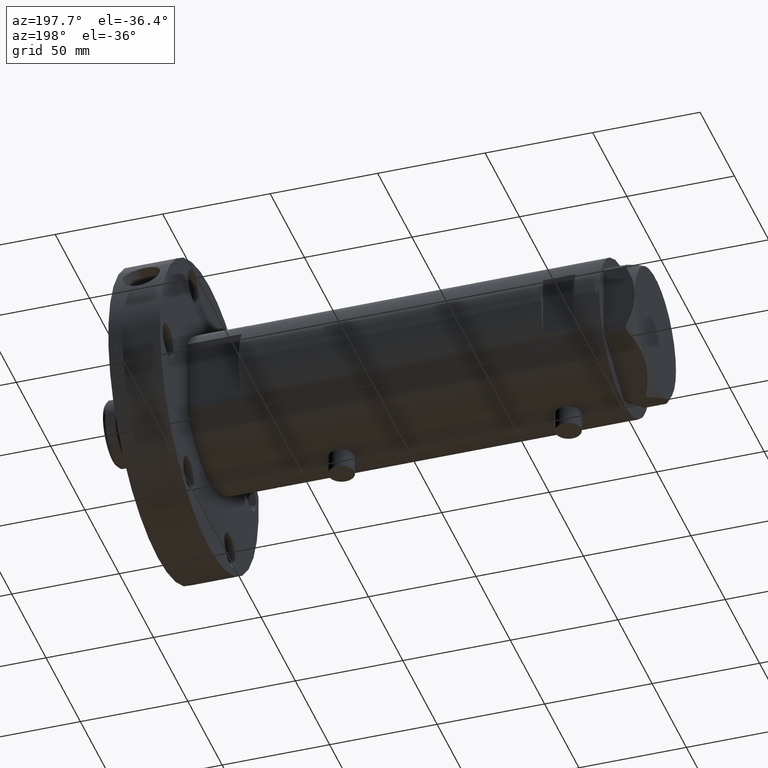
[diagram: clean part render]
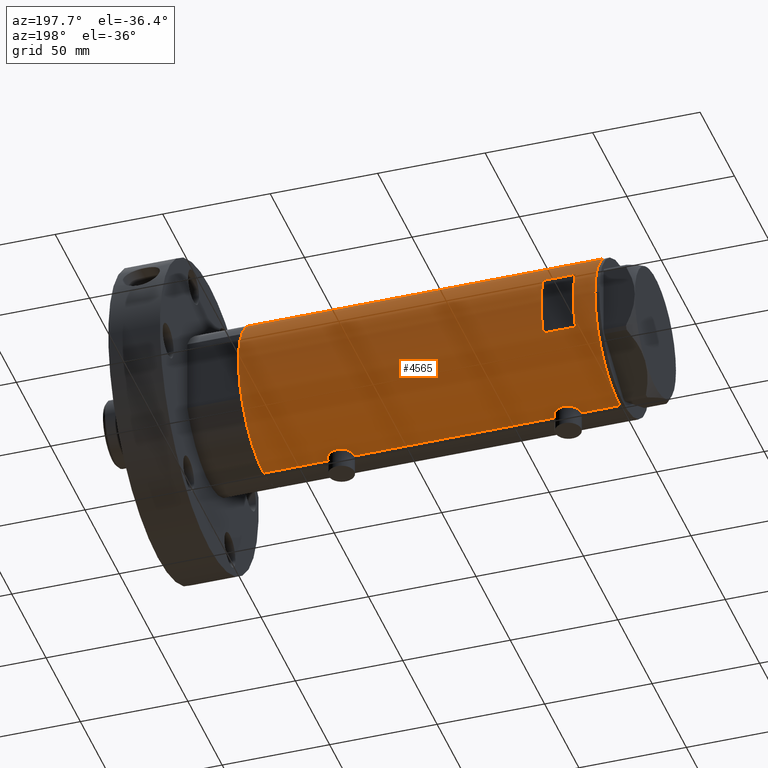
[diagram: same view with one face highlighted and labeled with its STEP entity id]
A machine part, auxiliary view. The second image highlights one B-rep face of the part: STEP entity #4565.
In plain terms, the highlighted cylindrical surface (partial cylindrical patch) has radius 36.5 mm, axis along (-1, -0, 0).
Its self-contained STEP definition (entity closure, byte-faithful):
#3 = CARTESIAN_POINT ( 'NONE',  ( 36.13018480315371761, 5.199168368309162958, 49.34353501791949981 ) ) ;
#9 = CARTESIAN_POINT ( 'NONE',  ( -36.46462099658055678, 1.618684470865503489, 64.94024397024845996 ) ) ;
#34 = CARTESIAN_POINT ( 'NONE',  ( 36.29611582693038940, 3.878758190381168092, -28.86955010900449992 ) ) ;
#36 = CARTESIAN_POINT ( 'NONE',  ( 35.69321149401850590, 7.633476302278302761, 64.36463072166442601 ) ) ;
#41 = CARTESIAN_POINT ( 'NONE',  ( -36.50000000000001421, 0.4083036190459299886, 52.65000000000002700 ) ) ;
#50 = CARTESIAN_POINT ( 'NONE',  ( 36.50000000000000000, 0.000000000000000000, -48.10000000000000142 ) ) ;
#60 = CARTESIAN_POINT ( 'NONE',  ( 36.50000000000000000, 0.4961820988516186803, -28.10000000000000142 ) ) ;
#85 = CARTESIAN_POINT ( 'NONE',  ( -36.19624103943463211, 4.708090268046854376, -42.46938778553861482 ) ) ;
#152 = CARTESIAN_POINT ( 'NONE',  ( 0.000000000000000000, 0.000000000000000000, 82.90000000000000568 ) ) ;
#181 = VECTOR ( 'NONE', #5698, 1000.000000000000000 ) ;
#246 = CARTESIAN_POINT ( 'NONE',  ( 0.000000000000000000, 0.000000000000000000, 57.90000000000014779 ) ) ;
#257 = CARTESIAN_POINT ( 'NONE',  ( 35.29999999999999716, 9.282241108697837362, -82.90000000000000568 ) ) ;
#262 = DIRECTION ( 'NONE',  ( 0.000000000000000000, 0.000000000000000000, 1.000000000000000000 ) ) ;
#285 = EDGE_CURVE ( 'NONE', #4495, #5595, #3672, .T. ) ;
#307 = CARTESIAN_POINT ( 'NONE',  ( 36.00287854058830561, 6.017835360303004144, -46.10188117181726142 ) ) ;
#326 = DIRECTION ( 'NONE',  ( -0.000000000000000000, -0.000000000000000000, -1.000000000000000000 ) ) ;
#337 = EDGE_CURVE ( 'NONE', #1635, #692, #5939, .T. ) ;
#342 = CARTESIAN_POINT ( 'NONE',  ( -36.50000000000000000, 4.469960816887838430E-15, -82.90000000000000568 ) ) ;
#344 = ORIENTED_EDGE ( 'NONE', *, *, #3118, .F. ) ;
#375 = CARTESIAN_POINT ( 'NONE',  ( -35.96805604460922012, 6.209309709790225007, 58.07887241731829420 ) ) ;
#378 = VERTEX_POINT ( 'NONE', #1829 ) ;
#397 = CARTESIAN_POINT ( 'NONE',  ( 36.50000000000000000, 4.344611676915099379E-19, -28.10000000000000142 ) ) ;
#399 = CARTESIAN_POINT ( 'NONE',  ( 36.29611582693039651, 3.878758190381167648, 67.13044989099549298 ) ) ;
#408 = CARTESIAN_POINT ( 'NONE',  ( -36.09617453667821962, 5.415318599347956230, 62.02706642672912807 ) ) ;
#426 = CARTESIAN_POINT ( 'NONE',  ( -36.01679413914727235, 5.919813138266332153, -44.58500308952962143 ) ) ;
#463 = CARTESIAN_POINT ( 'NONE',  ( 36.50000000000000000, 0.000000000000000000, 47.89999999999999858 ) ) ;
#481 = EDGE_CURVE ( 'NONE', #4024, #3593, #3124, .T. ) ;
#484 = CARTESIAN_POINT ( 'NONE',  ( -36.06690560274405044, 5.606949625760679901, -49.36885923958933375 ) ) ;
#491 = DIRECTION ( 'NONE',  ( 1.000000000000000000, 0.000000000000000000, 0.000000000000000000 ) ) ;
#493 = CARTESIAN_POINT ( 'NONE',  ( 36.45853166336078743, 1.985123042546143690, 48.04837329582261418 ) ) ;
#500 = CARTESIAN_POINT ( 'NONE',  ( -36.49292802938586533, 0.8230716655928878023, 52.69093061246486798 ) ) ;
#519 = CARTESIAN_POINT ( 'NONE',  ( -36.50000000000000711, 0.4083036190459276016, -52.85000000000001563 ) ) ;
#544 = ORIENTED_EDGE ( 'NONE', *, *, #1951, .T. ) ;
#545 = CARTESIAN_POINT ( 'NONE',  ( -36.26695135241004664, 4.128455078791307464, -51.31037591644739848 ) ) ;
#582 = CARTESIAN_POINT ( 'NONE',  ( 36.18937351723702989, 4.773052864917642246, -29.29864006881156513 ) ) ;
#616 = CARTESIAN_POINT ( 'NONE',  ( 36.41717583764485511, 2.469534783404757405, -28.40651988824328456 ) ) ;
#638 = DIRECTION ( 'NONE',  ( 1.000000000000000000, 1.776356839400250465E-15, 0.000000000000000000 ) ) ;
#681 = LINE ( 'NONE', #4324, #2271 ) ;
#686 = ORIENTED_EDGE ( 'NONE', *, *, #337, .T. ) ;
#692 = VERTEX_POINT ( 'NONE', #817 ) ;
#736 = ORIENTED_EDGE ( 'NONE', *, *, #5555, .F. ) ;
#817 = CARTESIAN_POINT ( 'NONE',  ( -36.50000000000000000, 4.469960816887838430E-15, 82.90000000000000568 ) ) ;
#837 = CARTESIAN_POINT ( 'NONE',  ( -36.44504802628534890, 2.011764947064734077, 64.82093644908518115 ) ) ;
#838 = LINE ( 'NONE', #342, #1398 ) ;
#862 = CARTESIAN_POINT ( 'NONE',  ( 36.00287854058830561, 6.017835360303004144, 49.89811882818275990 ) ) ;
#867 = CARTESIAN_POINT ( 'NONE',  ( -36.50000000000000000, 0.4137727629436733778, 65.15000000000000568 ) ) ;
#894 = CARTESIAN_POINT ( 'NONE',  ( 36.45954139109321801, 1.735915671103596125, 67.75136781147011789 ) ) ;
#916 = CARTESIAN_POINT ( 'NONE',  ( -36.46598788992681506, 1.625721481788706013, -52.64872046713838216 ) ) ;
#918 = VERTEX_POINT ( 'NONE', #50 ) ;
#923 = CARTESIAN_POINT ( 'NONE',  ( 35.29999999999999716, 9.282241108697837362, -41.82021504754764862 ) ) ;
#926 = CARTESIAN_POINT ( 'NONE',  ( -36.44628644024910358, 2.015372769639941275, 52.96971871986416858 ) ) ;
#939 = ORIENTED_EDGE ( 'NONE', *, *, #5234, .F. ) ;
#941 = CARTESIAN_POINT ( 'NONE',  ( -36.09617453667819831, 5.415318599347969553, -43.47293357327087193 ) ) ;
#944 = CARTESIAN_POINT ( 'NONE',  ( -36.50000000000000000, 4.469960493366092827E-15, -52.85000000000000853 ) ) ;
#948 = CARTESIAN_POINT ( 'NONE',  ( 35.52347503888662317, 8.410566959990465108, 63.39953967259342704 ) ) ;
#953 = CARTESIAN_POINT ( 'NONE',  ( -36.06690560274405044, 5.606949625760669242, 56.13114076041065914 ) ) ;
#971 = CARTESIAN_POINT ( 'NONE',  ( -35.99700617875954123, 6.038972911021593504, -44.97666814201680552 ) ) ;
#977 = CARTESIAN_POINT ( 'NONE',  ( 35.39804469700248291, 8.909380959553011792, -33.44946835517156103 ) ) ;
#1007 = CARTESIAN_POINT ( 'NONE',  ( -36.09643313249890895, 5.413601294342283765, -49.73007773391854869 ) ) ;
#1043 = DIRECTION ( 'NONE',  ( 1.000000000000000000, 0.000000000000000000, 0.000000000000000000 ) ) ;
#1155 = DIRECTION ( 'NONE',  ( -0.000000000000000000, -0.000000000000000000, -1.000000000000000000 ) ) ;
#1189 = CARTESIAN_POINT ( 'NONE',  ( 0.000000000000000000, 0.000000000000000000, 72.89999999999999147 ) ) ;
#1205 = VERTEX_POINT ( 'NONE', #2709 ) ;
#1206 = CARTESIAN_POINT ( 'NONE',  ( 36.34070350304396868, 3.414301401755547083, -47.50236217375907444 ) ) ;
#1287 = AXIS2_PLACEMENT_3D ( 'NONE', #246, #2137, #3144 ) ;
#1296 = ORIENTED_EDGE ( 'NONE', *, *, #5691, .F. ) ;
#1323 = CARTESIAN_POINT ( 'NONE',  ( 36.50000000000000000, 0.000000000000000000, -82.90000000000000568 ) ) ;
#1344 = CARTESIAN_POINT ( 'NONE',  ( -36.26695135241003953, 4.128455078791303023, 54.18962408355263705 ) ) ;
#1360 = CARTESIAN_POINT ( 'NONE',  ( -36.50000000000000000, 0.4137727629436737109, -40.35000000000000142 ) ) ;
#1369 = CARTESIAN_POINT ( 'NONE',  ( 36.41717583764487642, 2.469534783404759182, 67.59348011175673321 ) ) ;
#1375 = CARTESIAN_POINT ( 'NONE',  ( -14.49137674618942739, 33.50000000000000000, -82.90000000000000568 ) ) ;
#1394 = CARTESIAN_POINT ( 'NONE',  ( -36.39522946636255085, 2.769519034821246617, -52.20663923731272860 ) ) ;
#1398 = VECTOR ( 'NONE', #1685, 1000.000000000000000 ) ;
#1403 = CARTESIAN_POINT ( 'NONE',  ( 35.52737867031126484, 8.373910777960910323, -43.58860356717065798 ) ) ;
#1411 = CARTESIAN_POINT ( 'NONE',  ( -36.01524716445113228, 5.931039972055507370, 56.88669268135342350 ) ) ;
#1412 = EDGE_LOOP ( 'NONE', ( #3854, #3952, #3985, #5430, #3546, #686, #1296, #5461, #2348, #544, #736, #5694, #3105, #4111, #2440, #4710 ) ) ;
#1431 = FACE_BOUND ( 'NONE', #5076, .T. ) ;
#1436 = CARTESIAN_POINT ( 'NONE',  ( -36.36688032967139605, 3.133094607697478828, 64.32336432637509915 ) ) ;
#1451 = CARTESIAN_POINT ( 'NONE',  ( -36.30200038006934449, 3.811959488093747961, -41.63027895163993009 ) ) ;
#1459 = CARTESIAN_POINT ( 'NONE',  ( 36.18937351723702989, 4.773052864917642246, 66.70135993118843487 ) ) ;
#1464 = CARTESIAN_POINT ( 'NONE',  ( -35.96094343308265451, 6.249843792257625097, 59.31087110344572011 ) ) ;
#1478 = CARTESIAN_POINT ( 'NONE',  ( 36.50000000000000000, 0.000000000000000000, 82.90000000000000568 ) ) ;
#1480 = CARTESIAN_POINT ( 'NONE',  ( -36.39638105034455151, 2.774378062517180332, -40.98456667300897749 ) ) ;
#1523 = CARTESIAN_POINT ( 'NONE',  ( 35.79715675463676661, 7.130463293899343746, -31.08444415894004109 ) ) ;
#1575 = CARTESIAN_POINT ( 'NONE',  ( -36.50000000000000000, 4.469960493366092827E-15, -52.85000000000000853 ) ) ;
#1579 = CARTESIAN_POINT ( 'NONE',  ( 35.72794581931695035, 7.469526493268208611, -31.44660203271737586 ) ) ;
#1635 = VERTEX_POINT ( 'NONE', #1713 ) ;
#1685 = DIRECTION ( 'NONE',  ( 0.000000000000000000, 0.000000000000000000, 1.000000000000000000 ) ) ;
#1713 = CARTESIAN_POINT ( 'NONE',  ( -36.50000000000000000, 2.196845629780489385E-16, 65.15000000000000568 ) ) ;
#1740 = CARTESIAN_POINT ( 'NONE',  ( 35.59366931936805400, 8.089554397885871495, -43.99927319087814936 ) ) ;
#1743 = CARTESIAN_POINT ( 'NONE',  ( 36.50000000000000000, 0.000000000000000000, -82.90000000000000568 ) ) ;
#1758 = EDGE_CURVE ( 'NONE', #4124, #4705, #3263, .T. ) ;
#1804 = AXIS2_PLACEMENT_3D ( 'NONE', #3708, #2793, #491 ) ;
#1807 = FACE_OUTER_BOUND ( 'NONE', #1412, .T. ) ;
#1810 = CARTESIAN_POINT ( 'NONE',  ( 35.40502660484482789, 8.876998817796915020, -42.73098724071236632 ) ) ;
#1816 = CARTESIAN_POINT ( 'NONE',  ( -36.11199073531170001, 5.309184630646985426, 62.20412840766834250 ) ) ;
#1821 = CARTESIAN_POINT ( 'NONE',  ( 0.000000000000000000, 0.000000000000000000, -82.90000000000000568 ) ) ;
#1829 = CARTESIAN_POINT ( 'NONE',  ( 35.29999999999999716, 9.282241108697837362, 61.62021504754764578 ) ) ;
#1836 = CARTESIAN_POINT ( 'NONE',  ( 35.93435287561198521, 6.411571491280764867, 65.58988644922843037 ) ) ;
#1840 = CARTESIAN_POINT ( 'NONE',  ( -36.05296344941216091, 5.695624845616822363, 56.31845143463244341 ) ) ;
#1855 = CARTESIAN_POINT ( 'NONE',  ( -36.05296344941215381, 5.695624845616832133, -49.18154856536755659 ) ) ;
#1864 = CARTESIAN_POINT ( 'NONE',  ( 36.36225053217121683, 3.177096004138048713, 48.41483975524019456 ) ) ;
#1869 = CARTESIAN_POINT ( 'NONE',  ( -36.39522946636254375, 2.769519034821240844, 53.29336076268729272 ) ) ;
#1889 = CARTESIAN_POINT ( 'NONE',  ( -36.36688032967139605, 3.133094607697487266, -41.17663567362491506 ) ) ;
#1903 = CARTESIAN_POINT ( 'NONE',  ( -36.49297130294515057, 0.8204796224394267368, 65.10931692217734224 ) ) ;
#1919 = CARTESIAN_POINT ( 'NONE',  ( -36.36587679577596077, 3.131448301962866054, -52.01282465573622460 ) ) ;
#1925 = CARTESIAN_POINT ( 'NONE',  ( 35.72794581931695745, 7.469526493268204170, 64.55339796728263480 ) ) ;
#1945 = CARTESIAN_POINT ( 'NONE',  ( -36.26643311080166399, 4.132772529026643049, -41.89380594730118190 ) ) ;
#1951 = EDGE_CURVE ( 'NONE', #378, #5508, #2278, .T. ) ;
#2014 = CARTESIAN_POINT ( 'NONE',  ( 35.69321149401852011, 7.633476302278306314, -31.63536927833558110 ) ) ;
#2018 = VERTEX_POINT ( 'NONE', #1323 ) ;
#2041 = DIRECTION ( 'NONE',  ( 0.000000000000000000, 0.000000000000000000, 1.000000000000000000 ) ) ;
#2058 = CARTESIAN_POINT ( 'NONE',  ( -14.49137674618942917, 33.50000000000000000, 57.89999999999999147 ) ) ;
#2103 = CARTESIAN_POINT ( 'NONE',  ( -36.50000000000000000, 4.469960493369248271E-15, 52.65000000000001279 ) ) ;
#2129 = VERTEX_POINT ( 'NONE', #1478 ) ;
#2137 = DIRECTION ( 'NONE',  ( 0.000000000000000000, 4.625929269271492422E-15, 1.000000000000000000 ) ) ;
#2138 = EDGE_CURVE ( 'NONE', #1205, #3593, #2815, .T. ) ;
#2198 = CARTESIAN_POINT ( 'NONE',  ( 35.93456089024233790, 6.410413305453381838, -45.79085963204146026 ) ) ;
#2262 = CARTESIAN_POINT ( 'NONE',  ( 36.18948008481302026, 4.772042575486204363, 49.09822368756843503 ) ) ;
#2267 = CARTESIAN_POINT ( 'NONE',  ( -36.30200038006935159, 3.811959488093736415, 63.86972104836005570 ) ) ;
#2271 = VECTOR ( 'NONE', #2454, 1000.000000000000000 ) ;
#2278 = LINE ( 'NONE', #257, #4738 ) ;
#2286 = CARTESIAN_POINT ( 'NONE',  ( 35.29999999999999716, 9.282241108697837362, -82.90000000000000568 ) ) ;
#2296 = CARTESIAN_POINT ( 'NONE',  ( 36.40008489419981430, 2.709263960908035784, 67.52918104596393789 ) ) ;
#2301 = CARTESIAN_POINT ( 'NONE',  ( -14.49137674618942739, 33.50000000000000000, 72.89999999999999147 ) ) ;
#2304 = VERTEX_POINT ( 'NONE', #2058 ) ;
#2318 = CARTESIAN_POINT ( 'NONE',  ( -35.98846897517729815, 6.089479646546508640, -45.17765108453480849 ) ) ;
#2331 = CARTESIAN_POINT ( 'NONE',  ( -36.06675137892952421, 5.607935153446965693, 61.66681826008759515 ) ) ;
#2346 = CARTESIAN_POINT ( 'NONE',  ( -36.49297130294515057, 0.8204796224394304005, -40.39068307782265066 ) ) ;
#2348 = ORIENTED_EDGE ( 'NONE', *, *, #5617, .F. ) ;
#2358 = CARTESIAN_POINT ( 'NONE',  ( 35.72860827204725354, 7.471059959301286746, 51.23474849525592134 ) ) ;
#2363 = CARTESIAN_POINT ( 'NONE',  ( -36.19624103943462501, 4.708090268046841942, 63.03061221446136386 ) ) ;
#2376 = VECTOR ( 'NONE', #5085, 1000.000000000000000 ) ;
#2386 = CIRCLE ( 'NONE', #5846, 36.50000000000000000 ) ;
#2396 = CARTESIAN_POINT ( 'NONE',  ( -36.16126303108062956, 4.966520032693292563, 62.71641227745282521 ) ) ;
#2437 = CARTESIAN_POINT ( 'NONE',  ( -36.35033317675381426, 3.306376218664579536, -51.90770719416052970 ) ) ;
#2440 = ORIENTED_EDGE ( 'NONE', *, *, #5539, .F. ) ;
#2443 = CARTESIAN_POINT ( 'NONE',  ( 36.48988646280794512, 0.9921857666168116818, -28.13671884865573602 ) ) ;
#2454 = DIRECTION ( 'NONE',  ( 0.000000000000000000, 0.000000000000000000, 1.000000000000000000 ) ) ;
#2510 = CARTESIAN_POINT ( 'NONE',  ( 36.45954139109321090, 1.735915671103594571, -28.24863218852990698 ) ) ;
#2641 = VECTOR ( 'NONE', #262, 1000.000000000000000 ) ;
#2662 = CARTESIAN_POINT ( 'NONE',  ( 36.26917563968162739, 4.104523505324179311, -47.22215988367477024 ) ) ;
#2709 = CARTESIAN_POINT ( 'NONE',  ( -36.50000000000000000, 4.469960816887838430E-15, -82.90000000000000568 ) ) ;
#2714 = VERTEX_POINT ( 'NONE', #3940 ) ;
#2729 = CARTESIAN_POINT ( 'NONE',  ( 36.34264078466109993, 3.418717136061407480, 67.31049034040752588 ) ) ;
#2761 = CARTESIAN_POINT ( 'NONE',  ( 35.59366931936805400, 8.089554397885871495, 52.00072680912185774 ) ) ;
#2764 = DIRECTION ( 'NONE',  ( -0.000000000000000000, -0.000000000000000000, -1.000000000000000000 ) ) ;
#2787 = CARTESIAN_POINT ( 'NONE',  ( -36.47290054070997911, 1.420408912806975898, -40.51013018339984484 ) ) ;
#2793 = DIRECTION ( 'NONE',  ( 0.000000000000000000, 0.000000000000000000, 1.000000000000000000 ) ) ;
#2803 = CARTESIAN_POINT ( 'NONE',  ( -36.36587679577596077, 3.131448301962862057, 53.48717534426381803 ) ) ;
#2815 = LINE ( 'NONE', #6126, #181 ) ;
#2824 = CARTESIAN_POINT ( 'NONE',  ( 35.29999999999999716, 9.282241108697837362, -34.37978495245235422 ) ) ;
#2826 = CARTESIAN_POINT ( 'NONE',  ( 36.49999999999999289, 1.005842003469123558, 47.89999999999999147 ) ) ;
#2846 = CARTESIAN_POINT ( 'NONE',  ( -36.03936508729894683, 5.782103729777510637, -44.20129467396203893 ) ) ;
#2856 = CARTESIAN_POINT ( 'NONE',  ( 35.34894515018993388, 9.096104616284849342, -42.28464083466543144 ) ) ;
#2860 = EDGE_CURVE ( 'NONE', #4443, #4984, #681, .T. ) ;
#2861 = CARTESIAN_POINT ( 'NONE',  ( -36.16083474549355259, 4.969527450313370842, 55.08794680877250016 ) ) ;
#2879 = CARTESIAN_POINT ( 'NONE',  ( -36.44628644024910358, 2.015372769639944828, -52.53028128013585984 ) ) ;
#2907 = CARTESIAN_POINT ( 'NONE',  ( -36.16083474549354548, 4.969527450313382388, -50.41205319122751405 ) ) ;
#2945 = CARTESIAN_POINT ( 'NONE',  ( 36.49999999999999289, 0.4961820988516169595, 67.89999999999997726 ) ) ;
#2971 = CARTESIAN_POINT ( 'NONE',  ( 36.40008489419980720, 2.709263960908029123, -28.47081895403607632 ) ) ;
#3005 = CARTESIAN_POINT ( 'NONE',  ( 36.44688397185921502, 1.983417953489134744, -28.29550042351748829 ) ) ;
#3033 = CARTESIAN_POINT ( 'NONE',  ( 36.50000000000000000, 0.000000000000000000, -82.90000000000000568 ) ) ;
#3040 = EDGE_CURVE ( 'NONE', #2018, #918, #5986, .T. ) ;
#3074 = CARTESIAN_POINT ( 'NONE',  ( 36.49999999999999289, 1.005842003469123558, -48.09999999999999432 ) ) ;
#3105 = ORIENTED_EDGE ( 'NONE', *, *, #4614, .F. ) ;
#3107 = CARTESIAN_POINT ( 'NONE',  ( 36.29420020483470921, 3.877527130731371230, -47.32098974400295077 ) ) ;
#3118 = EDGE_CURVE ( 'NONE', #4705, #2714, #5110, .T. ) ;
#3124 = B_SPLINE_CURVE_WITH_KNOTS ( 'NONE', 3,
 ( #4310, #1360, #2346, #2787, #4732, #3797, #4684, #1480, #1889, #1451, #1945, #85, #5638, #4681, #941, #5191, #2846, #426, #971, #2318, #3373, #5257, #4216, #5129, #6099, #5730, #1855, #484, #1007, #3316, #2907, #4802, #545, #4708, #2437, #1919, #1394, #4336, #2879, #916, #4772, #519, #1575 ),
 .UNSPECIFIED., .F., .F.,
 ( 4, 2, 2, 2, 2, 2, 2, 2, 1, 2, 2, 2, 2, 2, 2, 2, 2, 2, 2, 2, 2, 4 ),
 ( 7.251201204191552072E-19, 0.001223527801214152827, 0.001835291701821226964, 0.002447055602428301752, 0.003670583403642443086, 0.004894111204856584421, 0.006117639006070725756, 0.006729402906677795122, 0.007341166807284864489, 0.007952930707891932988, 0.008564694608499004089, 0.009788222409713161903, 0.01101175021092732145, 0.01223527801214148100, 0.01284704191274855904, 0.01345880581335564055, 0.01468233361456980184, 0.01590586141578396312, 0.01651762531639104289, 0.01712938921699812267, 0.01835291701821228222, 0.01957644481942644524 ),
 .UNSPECIFIED. ) ;
#3126 = DIRECTION ( 'NONE',  ( 0.000000000000000000, 0.000000000000000000, 1.000000000000000000 ) ) ;
#3144 = DIRECTION ( 'NONE',  ( 0.000000000000000000, 1.000000000000000000, -4.562560375171875891E-15 ) ) ;
#3263 = CIRCLE ( 'NONE', #4441, 36.50000000000000000 ) ;
#3265 = CARTESIAN_POINT ( 'NONE',  ( 35.40502660484482789, 8.876998817796915020, 53.26901275928763368 ) ) ;
#3270 = CARTESIAN_POINT ( 'NONE',  ( -36.39638105034455862, 2.774378062517167454, 64.51543332699104383 ) ) ;
#3298 = CARTESIAN_POINT ( 'NONE',  ( 35.29999999999999716, 9.282241108697837362, 54.17978495245235138 ) ) ;
#3303 = CARTESIAN_POINT ( 'NONE',  ( -36.11206433103227909, 5.308658295084034862, 55.59515351959023377 ) ) ;
#3316 = CARTESIAN_POINT ( 'NONE',  ( -36.11206433103227198, 5.308658295084047296, -49.90484648040978755 ) ) ;
#3348 = CARTESIAN_POINT ( 'NONE',  ( 35.93435287561198521, 6.411571491280768420, -30.41011355077158029 ) ) ;
#3351 = CARTESIAN_POINT ( 'NONE',  ( 35.29999999999999716, 9.282241108697837362, -41.82021504754764862 ) ) ;
#3356 = B_SPLINE_CURVE_WITH_KNOTS ( 'NONE', 3,
 ( #5687, #867, #1903, #5204, #9, #837, #3782, #3270, #1436, #2267, #4261, #2363, #2396, #1816, #408, #2331, #4693, #4295, #4748, #4718, #4627, #1464, #4202, #375, #4228, #1411, #1840, #953, #3715, #3303, #2861, #3810, #1344, #4165, #6114, #2803, #1869, #6052, #926, #3689, #500, #41, #5588 ),
 .UNSPECIFIED., .F., .F.,
 ( 4, 2, 2, 2, 2, 2, 2, 2, 1, 2, 2, 2, 2, 2, 2, 2, 2, 2, 2, 2, 2, 4 ),
 ( 2.134326792795658191E-19, 0.001223527801214134613, 0.001835291701821197691, 0.002447055602428260986, 0.003670583403642388443, 0.004894111204856515032, 0.006117639006070642489, 0.006729402906677714458, 0.007341166807284786426, 0.007952930707891856660, 0.008564694608498929496, 0.009788222409713092514, 0.01101175021092725553, 0.01223527801214141682, 0.01284704191274850180, 0.01345880581335558331, 0.01468233361456974632, 0.01590586141578391108, 0.01651762531639099432, 0.01712938921699807757, 0.01835291701821224059, 0.01957644481942640707 ),
 .UNSPECIFIED. ) ;
#3373 = CARTESIAN_POINT ( 'NONE',  ( -35.96793274302673638, 6.210029014836893069, -45.78305762320682248 ) ) ;
#3439 = CARTESIAN_POINT ( 'NONE',  ( 36.12877841835538106, 5.208882251161926824, -29.54946835209708667 ) ) ;
#3470 = CARTESIAN_POINT ( 'NONE',  ( 36.34264078466111414, 3.418717136061404815, -28.68950965959248123 ) ) ;
#3472 = CARTESIAN_POINT ( 'NONE',  ( 36.50000000000000000, 4.344604608721388599E-19, 67.90000000000000568 ) ) ;
#3508 = VERTEX_POINT ( 'NONE', #2103 ) ;
#3546 = ORIENTED_EDGE ( 'NONE', *, *, #4110, .F. ) ;
#3593 = VERTEX_POINT ( 'NONE', #944 ) ;
#3603 = ORIENTED_EDGE ( 'NONE', *, *, #1758, .F. ) ;
#3668 = ORIENTED_EDGE ( 'NONE', *, *, #4131, .F. ) ;
#3672 = LINE ( 'NONE', #2286, #5728 ) ;
#3683 = CARTESIAN_POINT ( 'NONE',  ( 35.93456089024233790, 6.410413305453381838, 50.20914036795854685 ) ) ;
#3689 = CARTESIAN_POINT ( 'NONE',  ( -36.46598788992681506, 1.625721481788708456, 52.85127953286164626 ) ) ;
#3694 = DIRECTION ( 'NONE',  ( 0.000000000000000000, 0.000000000000000000, 1.000000000000000000 ) ) ;
#3708 = CARTESIAN_POINT ( 'NONE',  ( 0.000000000000000000, 0.000000000000000000, -82.90000000000000568 ) ) ;
#3710 = CARTESIAN_POINT ( 'NONE',  ( 36.00145998247697321, 6.026272765084660143, 65.89550388212386167 ) ) ;
#3715 = CARTESIAN_POINT ( 'NONE',  ( -36.09643313249889474, 5.413601294342269554, 55.76992226608147973 ) ) ;
#3738 = CARTESIAN_POINT ( 'NONE',  ( 36.29420020483470921, 3.877527130731371230, 48.67901025599706344 ) ) ;
#3744 = DIRECTION ( 'NONE',  ( 0.000000000000000000, 0.000000000000000000, 1.000000000000000000 ) ) ;
#3782 = CARTESIAN_POINT ( 'NONE',  ( -36.43371204571226230, 2.206934156026284732, 64.75097281670994676 ) ) ;
#3789 = CARTESIAN_POINT ( 'NONE',  ( 36.50000000000000000, 0.000000000000000000, 47.89999999999999858 ) ) ;
#3797 = CARTESIAN_POINT ( 'NONE',  ( -36.44504802628535600, 2.011764947064739406, -40.67906355091481174 ) ) ;
#3805 = CARTESIAN_POINT ( 'NONE',  ( 35.83170458557579963, 6.955065627744201784, 65.08941671912468507 ) ) ;
#3810 = CARTESIAN_POINT ( 'NONE',  ( -36.19597718496778072, 4.710322426433902088, 54.77148389237986237 ) ) ;
#3836 = CARTESIAN_POINT ( 'NONE',  ( 35.83170458557578542, 6.955065627744200007, -30.91058328087535401 ) ) ;
#3854 = ORIENTED_EDGE ( 'NONE', *, *, #3886, .T. ) ;
#3866 = VECTOR ( 'NONE', #3744, 1000.000000000000000 ) ;
#3886 = EDGE_CURVE ( 'NONE', #2018, #1205, #2386, .T. ) ;
#3940 = CARTESIAN_POINT ( 'NONE',  ( 14.49137674618942917, 33.50000000000000000, 57.89999999999999147 ) ) ;
#3952 = ORIENTED_EDGE ( 'NONE', *, *, #2138, .T. ) ;
#3985 = ORIENTED_EDGE ( 'NONE', *, *, #481, .F. ) ;
#4024 = VERTEX_POINT ( 'NONE', #4101 ) ;
#4096 = CARTESIAN_POINT ( 'NONE',  ( 35.79766710091576698, 7.135341284989892507, -45.12350520560902822 ) ) ;
#4101 = CARTESIAN_POINT ( 'NONE',  ( -36.50000000000000000, 7.463603853851042361E-16, -40.34999999999999432 ) ) ;
#4110 = EDGE_CURVE ( 'NONE', #1635, #3508, #3356, .T. ) ;
#4111 = ORIENTED_EDGE ( 'NONE', *, *, #285, .T. ) ;
#4124 = VERTEX_POINT ( 'NONE', #2301 ) ;
#4131 = EDGE_CURVE ( 'NONE', #2304, #4124, #5619, .T. ) ;
#4159 = CARTESIAN_POINT ( 'NONE',  ( 35.79715675463678082, 7.130463293899336641, 64.91555584105995536 ) ) ;
#4165 = CARTESIAN_POINT ( 'NONE',  ( -36.30181775639987762, 3.813582387016778430, 53.93163942425564983 ) ) ;
#4173 = AXIS2_PLACEMENT_3D ( 'NONE', #152, #2041, #1043 ) ;
#4175 = DIRECTION ( 'NONE',  ( 1.000000000000000000, 0.000000000000000000, 0.000000000000000000 ) ) ;
#4202 = CARTESIAN_POINT ( 'NONE',  ( -35.96088929326158734, 6.250155299092678085, 58.49389505236757003 ) ) ;
#4216 = CARTESIAN_POINT ( 'NONE',  ( -35.96088929326157313, 6.250155299092693184, -47.00610494763245129 ) ) ;
#4228 = CARTESIAN_POINT ( 'NONE',  ( -35.99530513653992614, 6.049346314076198716, 57.27667416964168012 ) ) ;
#4261 = CARTESIAN_POINT ( 'NONE',  ( -36.26643311080165688, 4.132772529026629726, 63.60619405269881099 ) ) ;
#4291 = CARTESIAN_POINT ( 'NONE',  ( 35.29999999999999716, 9.282241108697837362, 61.62021504754764578 ) ) ;
#4295 = CARTESIAN_POINT ( 'NONE',  ( -36.01679413914727235, 5.919813138266318830, 60.91499691047037146 ) ) ;
#4310 = CARTESIAN_POINT ( 'NONE',  ( -36.50000000000000000, 7.463603853851042361E-16, -40.34999999999999432 ) ) ;
#4324 = CARTESIAN_POINT ( 'NONE',  ( 36.50000000000000000, 0.000000000000000000, -82.90000000000000568 ) ) ;
#4336 = CARTESIAN_POINT ( 'NONE',  ( -36.40902375114222167, 2.582415566883932811, -52.29521691469690836 ) ) ;
#4403 = CARTESIAN_POINT ( 'NONE',  ( 36.50000000000000000, 4.344611676915099379E-19, -28.10000000000000142 ) ) ;
#4441 = AXIS2_PLACEMENT_3D ( 'NONE', #1189, #1155, #638 ) ;
#4443 = VERTEX_POINT ( 'NONE', #397 ) ;
#4462 = CIRCLE ( 'NONE', #4173, 36.50000000000000000 ) ;
#4467 = CARTESIAN_POINT ( 'NONE',  ( 35.29999999999999716, 9.282241108697837362, 54.17978495245235138 ) ) ;
#4490 = CARTESIAN_POINT ( 'NONE',  ( 36.50000000000000000, 4.344604608721388599E-19, 67.90000000000000568 ) ) ;
#4495 = VERTEX_POINT ( 'NONE', #2824 ) ;
#4507 = B_SPLINE_CURVE_WITH_KNOTS ( 'NONE', 3,
 ( #4291, #6078, #948, #36, #1925, #4159, #3805, #1836, #3710, #5710, #1459, #399, #2729, #2296, #1369, #5138, #894, #4689, #2945, #3472 ),
 .UNSPECIFIED., .F., .F.,
 ( 4, 2, 2, 2, 2, 2, 2, 2, 2, 4 ),
 ( 0.000000000000000000, 0.002977391289382842147, 0.003721739111728546070, 0.004466086934074248692, 0.005954782578765684294, 0.007443478223457119895, 0.008932173868148556364, 0.009676521690494280237, 0.01042086951284000584, 0.01190956515753144838 ),
 .UNSPECIFIED. ) ;
#4515 = CARTESIAN_POINT ( 'NONE',  ( -36.50000000000000000, 4.469960816887838430E-15, -82.90000000000000568 ) ) ;
#4557 = CARTESIAN_POINT ( 'NONE',  ( 36.13018480315371761, 5.199168368309162958, -46.65646498208050730 ) ) ;
#4565 = ADVANCED_FACE ( 'NONE', ( #1431, #1807 ), #4741, .T. ) ;
#4614 = EDGE_CURVE ( 'NONE', #4495, #4443, #5232, .T. ) ;
#4621 = CARTESIAN_POINT ( 'NONE',  ( 36.26917563968162739, 4.104523505324179311, 48.77784011632527239 ) ) ;
#4627 = CARTESIAN_POINT ( 'NONE',  ( -35.96793274302675769, 6.210029014836877970, 59.71694237679319173 ) ) ;
#4681 = CARTESIAN_POINT ( 'NONE',  ( -36.11199073531169290, 5.309184630646996972, -43.29587159233165039 ) ) ;
#4684 = CARTESIAN_POINT ( 'NONE',  ( -36.43371204571226940, 2.206934156026296723, -40.74902718329001772 ) ) ;
#4689 = CARTESIAN_POINT ( 'NONE',  ( 36.48988646280793802, 0.9921857666168150125, 67.86328115134426753 ) ) ;
#4693 = CARTESIAN_POINT ( 'NONE',  ( -36.03936508729894683, 5.782103729777503531, 61.29870532603795397 ) ) ;
#4701 = EDGE_CURVE ( 'NONE', #5747, #2129, #4918, .T. ) ;
#4705 = VERTEX_POINT ( 'NONE', #4947 ) ;
#4708 = CARTESIAN_POINT ( 'NONE',  ( -36.30181775639988473, 3.813582387016784203, -51.56836057574439280 ) ) ;
#4710 = ORIENTED_EDGE ( 'NONE', *, *, #3040, .F. ) ;
#4718 = CARTESIAN_POINT ( 'NONE',  ( -35.98846897517730525, 6.089479646546494429, 60.32234891546520572 ) ) ;
#4732 = CARTESIAN_POINT ( 'NONE',  ( -36.46462099658057099, 1.618684470865508596, -40.55975602975155425 ) ) ;
#4738 = VECTOR ( 'NONE', #5000, 1000.000000000000000 ) ;
#4741 = CYLINDRICAL_SURFACE ( 'NONE', #1804, 36.50000000000000000 ) ;
#4744 = CARTESIAN_POINT ( 'NONE',  ( 35.52737867031126484, 8.373910777960910323, 52.41139643282934202 ) ) ;
#4748 = CARTESIAN_POINT ( 'NONE',  ( -35.99700617875953412, 6.038972911021577517, 60.52333185798319448 ) ) ;
#4772 = CARTESIAN_POINT ( 'NONE',  ( -36.49292802938587243, 0.8230716655928884684, -52.80906938753516044 ) ) ;
#4802 = CARTESIAN_POINT ( 'NONE',  ( -36.19597718496778782, 4.710322426433910081, -50.72851610762017316 ) ) ;
#4867 = CARTESIAN_POINT ( 'NONE',  ( 35.52347503888660185, 8.410566959990466884, -32.60046032740658006 ) ) ;
#4918 = LINE ( 'NONE', #3033, #5557 ) ;
#4947 = CARTESIAN_POINT ( 'NONE',  ( 14.49137674618942739, 33.50000000000000000, 72.89999999999999147 ) ) ;
#4959 = CARTESIAN_POINT ( 'NONE',  ( 36.45853166336078743, 1.985123042546143690, -47.95162670417735740 ) ) ;
#4984 = VERTEX_POINT ( 'NONE', #3789 ) ;
#4985 = CARTESIAN_POINT ( 'NONE',  ( 36.18948008481302026, 4.772042575486204363, -46.90177631243157919 ) ) ;
#5000 = DIRECTION ( 'NONE',  ( -0.000000000000000000, -0.000000000000000000, -1.000000000000000000 ) ) ;
#5076 = EDGE_LOOP ( 'NONE', ( #3668, #939, #344, #3603 ) ) ;
#5085 = DIRECTION ( 'NONE',  ( 0.000000000000000000, 0.000000000000000000, 1.000000000000000000 ) ) ;
#5110 = LINE ( 'NONE', #5202, #5346 ) ;
#5124 = B_SPLINE_CURVE_WITH_KNOTS ( 'NONE', 3,
 ( #463, #2826, #493, #1864, #6108, #3738, #4621, #2262, #3, #862, #3683, #5612, #2358, #2761, #4744, #3265, #5648, #3298 ),
 .UNSPECIFIED., .F., .F.,
 ( 4, 2, 2, 2, 2, 2, 2, 2, 4 ),
 ( 6.505213034913026604E-19, 0.002973648994175712851, 0.003717061242719640196, 0.004460473491263567541, 0.005947297988351423099, 0.007434122485439277790, 0.008920946982527131613, 0.01040777147961498630, 0.01189459597670284099 ),
 .UNSPECIFIED. ) ;
#5129 = CARTESIAN_POINT ( 'NONE',  ( -35.96805604460922012, 6.209309709790239218, -47.42112758268170580 ) ) ;
#5138 = CARTESIAN_POINT ( 'NONE',  ( 36.44688397185922213, 1.983417953489136965, 67.70449957648254724 ) ) ;
#5163 = EDGE_CURVE ( 'NONE', #4024, #3508, #838, .T. ) ;
#5191 = CARTESIAN_POINT ( 'NONE',  ( -36.06675137892952421, 5.607935153446982568, -43.83318173991241906 ) ) ;
#5202 = CARTESIAN_POINT ( 'NONE',  ( 14.49137674618942739, 33.50000000000000000, -82.90000000000000568 ) ) ;
#5204 = CARTESIAN_POINT ( 'NONE',  ( -36.47290054070997911, 1.420408912806971014, 64.98986981660013384 ) ) ;
#5232 = B_SPLINE_CURVE_WITH_KNOTS ( 'NONE', 3,
 ( #5771, #977, #4867, #2014, #1579, #1523, #3836, #3348, #5795, #3439, #582, #34, #3470, #2971, #616, #3005, #2510, #2443, #60, #4403 ),
 .UNSPECIFIED., .F., .F.,
 ( 4, 2, 2, 2, 2, 2, 2, 2, 2, 4 ),
 ( 0.000000000000000000, 0.002977391289382820029, 0.003721739111728531758, 0.004466086934074251294, 0.005954782578765692100, 0.007443478223457132038, 0.008932173868148571977, 0.009676521690494288910, 0.01042086951284000758, 0.01190956515753144491 ),
 .UNSPECIFIED. ) ;
#5234 = EDGE_CURVE ( 'NONE', #2714, #2304, #5435, .T. ) ;
#5257 = CARTESIAN_POINT ( 'NONE',  ( -35.96094343308264740, 6.249843792257639308, -46.18912889655430121 ) ) ;
#5321 = B_SPLINE_CURVE_WITH_KNOTS ( 'NONE', 3,
 ( #5416, #3074, #4959, #5451, #1206, #3107, #2662, #4985, #4557, #307, #2198, #4096, #5983, #1740, #1403, #1810, #2856, #923 ),
 .UNSPECIFIED., .F., .F.,
 ( 4, 2, 2, 2, 2, 2, 2, 2, 4 ),
 ( 6.505213034913026604E-19, 0.002973648994175712851, 0.003717061242719640196, 0.004460473491263567541, 0.005947297988351423099, 0.007434122485439277790, 0.008920946982527131613, 0.01040777147961498630, 0.01189459597670284099 ),
 .UNSPECIFIED. ) ;
#5346 = VECTOR ( 'NONE', #2764, 1000.000000000000000 ) ;
#5416 = CARTESIAN_POINT ( 'NONE',  ( 36.50000000000000000, 0.000000000000000000, -48.10000000000000142 ) ) ;
#5430 = ORIENTED_EDGE ( 'NONE', *, *, #5163, .T. ) ;
#5435 = CIRCLE ( 'NONE', #1287, 36.50000000000000000 ) ;
#5451 = CARTESIAN_POINT ( 'NONE',  ( 36.36225053217121683, 3.177096004138048713, -47.58516024475981965 ) ) ;
#5461 = ORIENTED_EDGE ( 'NONE', *, *, #4701, .F. ) ;
#5508 = VERTEX_POINT ( 'NONE', #4467 ) ;
#5539 = EDGE_CURVE ( 'NONE', #918, #5595, #5321, .T. ) ;
#5555 = EDGE_CURVE ( 'NONE', #4984, #5508, #5124, .T. ) ;
#5557 = VECTOR ( 'NONE', #3126, 1000.000000000000000 ) ;
#5588 = CARTESIAN_POINT ( 'NONE',  ( -36.50000000000000000, 4.469960493369248271E-15, 52.65000000000001279 ) ) ;
#5595 = VERTEX_POINT ( 'NONE', #3351 ) ;
#5612 = CARTESIAN_POINT ( 'NONE',  ( 35.79766710091576698, 7.135341284989892507, 50.87649479439096467 ) ) ;
#5617 = EDGE_CURVE ( 'NONE', #378, #5747, #4507, .T. ) ;
#5619 = LINE ( 'NONE', #1375, #3866 ) ;
#5638 = CARTESIAN_POINT ( 'NONE',  ( -36.16126303108063667, 4.966520032693304998, -42.78358772254716058 ) ) ;
#5648 = CARTESIAN_POINT ( 'NONE',  ( 35.34894515018993388, 9.096104616284849342, 53.71535916533458987 ) ) ;
#5687 = CARTESIAN_POINT ( 'NONE',  ( -36.50000000000000000, 2.196845629780489385E-16, 65.15000000000000568 ) ) ;
#5691 = EDGE_CURVE ( 'NONE', #2129, #692, #4462, .T. ) ;
#5694 = ORIENTED_EDGE ( 'NONE', *, *, #2860, .F. ) ;
#5698 = DIRECTION ( 'NONE',  ( 0.000000000000000000, 0.000000000000000000, 1.000000000000000000 ) ) ;
#5710 = CARTESIAN_POINT ( 'NONE',  ( 36.12877841835537396, 5.208882251161923271, 66.45053164790293465 ) ) ;
#5728 = VECTOR ( 'NONE', #326, 1000.000000000000000 ) ;
#5730 = CARTESIAN_POINT ( 'NONE',  ( -36.01524716445113938, 5.931039972055519804, -48.61330731864658361 ) ) ;
#5747 = VERTEX_POINT ( 'NONE', #4490 ) ;
#5771 = CARTESIAN_POINT ( 'NONE',  ( 35.29999999999999716, 9.282241108697837362, -34.37978495245235422 ) ) ;
#5795 = CARTESIAN_POINT ( 'NONE',  ( 36.00145998247696610, 6.026272765084661920, -30.10449611787613478 ) ) ;
#5846 = AXIS2_PLACEMENT_3D ( 'NONE', #1821, #3694, #4175 ) ;
#5939 = LINE ( 'NONE', #4515, #2641 ) ;
#5983 = CARTESIAN_POINT ( 'NONE',  ( 35.72860827204725354, 7.471059959301286746, -44.76525150474409998 ) ) ;
#5986 = LINE ( 'NONE', #1743, #2376 ) ;
#6052 = CARTESIAN_POINT ( 'NONE',  ( -36.40902375114222167, 2.582415566883931479, 53.20478308530312006 ) ) ;
#6078 = CARTESIAN_POINT ( 'NONE',  ( 35.39804469700246869, 8.909380959553008239, 62.55053164482843187 ) ) ;
#6099 = CARTESIAN_POINT ( 'NONE',  ( -35.99530513653993324, 6.049346314076213815, -48.22332583035833409 ) ) ;
#6108 = CARTESIAN_POINT ( 'NONE',  ( 36.34070350304396868, 3.414301401755547083, 48.49763782624093267 ) ) ;
#6114 = CARTESIAN_POINT ( 'NONE',  ( -36.35033317675380715, 3.306376218664574207, 53.59229280583950583 ) ) ;
#6126 = CARTESIAN_POINT ( 'NONE',  ( -36.50000000000000000, 4.469960816887838430E-15, -82.90000000000000568 ) ) ;